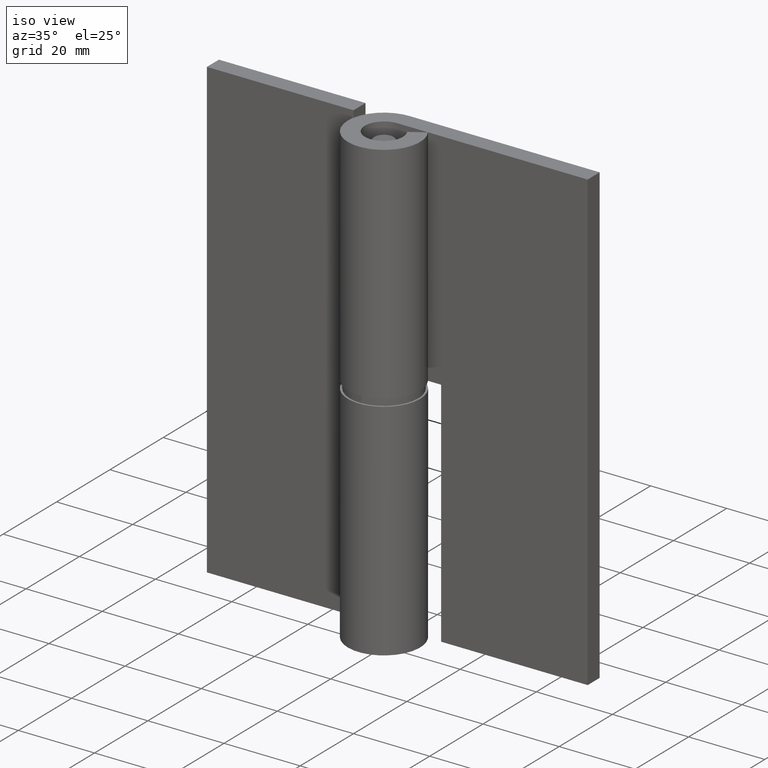
[diagram: clean part render]
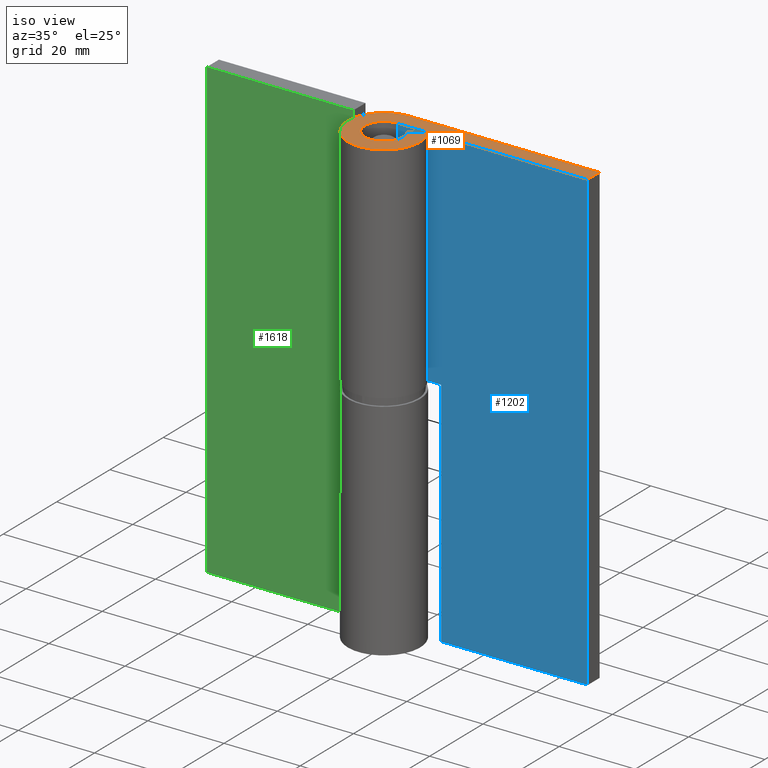
[diagram: same view with three faces highlighted in distinct colors, each labeled with its STEP entity id]
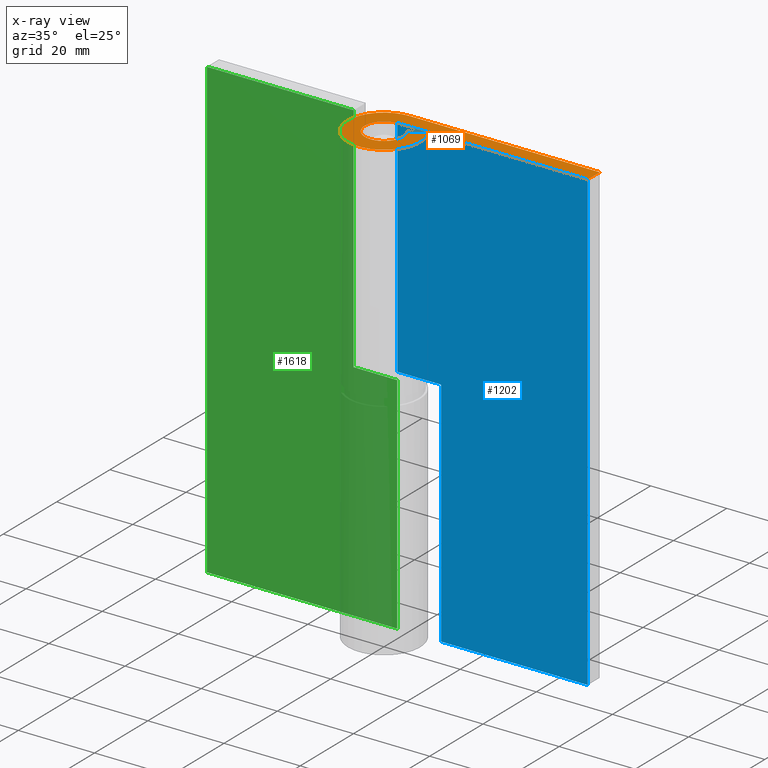
[diagram: x-ray of the same camera — body ghosted, the three highlighted faces saturated]
A machine part, iso view with three faces highlighted in distinct colors.
The next image is the same camera in x-ray (body ghosted, the three faces saturated) — at least one of them is partly hidden behind the body in this view.
Their STEP definitions:

[orange] entity #1069 — the highlighted face is a freeform B-spline surface patch.
#992=CARTESIAN_POINT('',(-12.471756635029839,-10.447973575599120,120.000015000000000));
#993=CARTESIAN_POINT('',(52.972013718958777,-10.447973575599120,120.000015000000000));
#994=CARTESIAN_POINT('',(-12.471756635029839,10.448999265035310,120.000015000000000));
#995=CARTESIAN_POINT('',(52.972013718958777,10.448999265035310,120.000015000000000));
#996=B_SPLINE_SURFACE_WITH_KNOTS('',1,1,((#992,#994),(#993,#995)),.UNSPECIFIED.,.F.,.F.,.U.,(2,2),(2,2),(0.0,65.443770353988612),(0.0,20.896972840634430),.UNSPECIFIED.);
#997=CARTESIAN_POINT('',(4.267622743181081,2.605263157894730,120.000015000000000));
#998=VERTEX_POINT('',#997);
#999=CARTESIAN_POINT('',(0.0,5.0,120.000015000000000));
#1000=VERTEX_POINT('',#999);
#1001=CARTESIAN_POINT('',(4.267622743181078,2.605263157894728,120.000015000000000));
#1002=CARTESIAN_POINT('',(6.279409924410268,-0.690199990631001,120.000015000000000));
#1003=CARTESIAN_POINT('',(3.599859763297245,-3.470015804660478,120.000015000000000));
#1004=CARTESIAN_POINT('',(0.920309602184222,-6.249831618689957,120.000015000000000));
#1005=CARTESIAN_POINT('',(-2.446802424647964,-4.360407996361905,120.000015000000000));
#1006=CARTESIAN_POINT('',(-5.813914451480154,-2.470984374033851,120.000015000000000));
#1007=CARTESIAN_POINT('',(-4.837460076414559,1.264507812983077,120.000015000000000));
#1008=CARTESIAN_POINT('',(-3.861005701348966,4.999999999999999,120.000015000000000));
#1009=CARTESIAN_POINT('',(0.0,5.0,120.000015000000000));
#1017=(BOUNDED_CURVE()B_SPLINE_CURVE(2,(#1001,#1002,#1003,#1004,#1005,#1006,#1007,#1008,#1009),.UNSPECIFIED.,.F.,.U.)B_SPLINE_CURVE_WITH_KNOTS((3,2,2,2,3),(0.0,0.250000000000000,0.500000000000000,0.750000000000000,1.0),.UNSPECIFIED.)CURVE()GEOMETRIC_REPRESENTATION_ITEM()RATIONAL_B_SPLINE_CURVE((1.0,0.791486437848627,1.0,0.791486437848627,1.0,0.791486437848627,1.0,0.791486437848627,1.0))REPRESENTATION_ITEM(''));
#1018=EDGE_CURVE('',#998,#1000,#1017,.T.);
#1019=ORIENTED_EDGE('',*,*,#1018,.T.);
#1020=CARTESIAN_POINT('',(50.0,5.0,120.000015000000000));
#1021=VERTEX_POINT('',#1020);
#1022=CARTESIAN_POINT('',(0.0,5.0,120.000015000000000));
#1023=CARTESIAN_POINT('',(50.0,5.0,120.000015000000000));
#1024=QUASI_UNIFORM_CURVE('',1,(#1022,#1023),.UNSPECIFIED.,.F.,.U.);
#1025=EDGE_CURVE('',#1000,#1021,#1024,.T.);
#1026=ORIENTED_EDGE('',*,*,#1025,.T.);
#1027=CARTESIAN_POINT('',(50.0,9.500000000000000,120.000015000000000));
#1028=VERTEX_POINT('',#1027);
#1029=CARTESIAN_POINT('',(50.0,5.0,120.000015000000000));
#1030=CARTESIAN_POINT('',(50.0,9.500000000000000,120.000015000000000));
#1031=QUASI_UNIFORM_CURVE('',1,(#1029,#1030),.UNSPECIFIED.,.F.,.U.);
#1032=EDGE_CURVE('',#1021,#1028,#1031,.T.);
#1033=ORIENTED_EDGE('',*,*,#1032,.T.);
#1034=CARTESIAN_POINT('',(0.0,9.500000000000000,120.000015000000000));
#1035=VERTEX_POINT('',#1034);
#1036=CARTESIAN_POINT('',(50.0,9.500000000000000,120.000015000000000));
#1037=CARTESIAN_POINT('',(0.0,9.500000000000000,120.000015000000000));
#1038=QUASI_UNIFORM_CURVE('',1,(#1036,#1037),.UNSPECIFIED.,.F.,.U.);
#1039=EDGE_CURVE('',#1028,#1035,#1038,.T.);
#1040=ORIENTED_EDGE('',*,*,#1039,.T.);
#1041=CARTESIAN_POINT('',(8.108483212044041,4.950000000000000,120.000015000000000));
#1042=VERTEX_POINT('',#1041);
#1043=CARTESIAN_POINT('',(8.108483212044039,4.949999999999998,120.000015000000000));
#1044=CARTESIAN_POINT('',(11.930878856379515,-1.311379982198886,120.000014999999990));
#1045=CARTESIAN_POINT('',(6.839733550264771,-6.593030028854902,120.000015000000000));
#1046=CARTESIAN_POINT('',(1.748588244150024,-11.874680075510922,120.000014999999990));
#1047=CARTESIAN_POINT('',(-4.648924606831132,-8.284775193087620,120.000015000000000));
#1048=CARTESIAN_POINT('',(-11.046437457812292,-4.694870310664316,120.000014999999990));
#1049=CARTESIAN_POINT('',(-9.191174145187663,2.402564844667847,120.000015000000000));
#1050=CARTESIAN_POINT('',(-7.335910832563033,9.500000000000002,120.000014999999990));
#1051=CARTESIAN_POINT('',(0.0,9.500000000000000,120.000015000000000));
#1059=(BOUNDED_CURVE()B_SPLINE_CURVE(2,(#1043,#1044,#1045,#1046,#1047,#1048,#1049,#1050,#1051),.UNSPECIFIED.,.F.,.U.)B_SPLINE_CURVE_WITH_KNOTS((3,2,2,2,3),(0.0,0.250000000000000,0.500000000000000,0.750000000000000,1.0),.UNSPECIFIED.)CURVE()GEOMETRIC_REPRESENTATION_ITEM()RATIONAL_B_SPLINE_CURVE((1.0,0.791486437848626,1.0,0.791486437848626,1.0,0.791486437848626,1.0,0.791486437848626,1.0))REPRESENTATION_ITEM(''));
#1060=EDGE_CURVE('',#1042,#1035,#1059,.T.);
#1061=ORIENTED_EDGE('',*,*,#1060,.F.);
#1062=CARTESIAN_POINT('',(8.108483212044041,4.950000000000000,120.000015000000000));
#1063=CARTESIAN_POINT('',(4.267622743181081,2.605263157894730,120.000015000000000));
#1064=QUASI_UNIFORM_CURVE('',1,(#1062,#1063),.UNSPECIFIED.,.F.,.U.);
#1065=EDGE_CURVE('',#1042,#998,#1064,.T.);
#1066=ORIENTED_EDGE('',*,*,#1065,.T.);
#1067=EDGE_LOOP('',(#1019,#1026,#1033,#1040,#1061,#1066));
#1068=FACE_OUTER_BOUND('',#1067,.T.);
#1069=ADVANCED_FACE('',(#1068),#996,.T.);

[blue] entity #1202 — the highlighted face is a freeform B-spline surface patch.
#893=CARTESIAN_POINT('',(11.500000000000000,5.0,61.0));
#894=VERTEX_POINT('',#893);
#907=CARTESIAN_POINT('',(11.500000000000000,5.0,0.0));
#908=VERTEX_POINT('',#907);
#914=CARTESIAN_POINT('',(11.500000000000000,5.0,61.0));
#915=CARTESIAN_POINT('',(11.500000000000000,5.0,0.0));
#916=QUASI_UNIFORM_CURVE('',1,(#914,#915),.UNSPECIFIED.,.F.,.U.);
#917=EDGE_CURVE('',#894,#908,#916,.T.);
#929=CARTESIAN_POINT('',(0.0,5.0,61.0));
#930=VERTEX_POINT('',#929);
#984=CARTESIAN_POINT('',(0.0,5.0,61.0));
#985=CARTESIAN_POINT('',(11.500000000000000,5.0,61.0));
#986=QUASI_UNIFORM_CURVE('',1,(#984,#985),.UNSPECIFIED.,.F.,.U.);
#987=EDGE_CURVE('',#930,#894,#986,.T.);
#999=CARTESIAN_POINT('',(0.0,5.0,120.000015000000000));
#1000=VERTEX_POINT('',#999);
#1020=CARTESIAN_POINT('',(50.0,5.0,120.000015000000000));
#1021=VERTEX_POINT('',#1020);
#1022=CARTESIAN_POINT('',(0.0,5.0,120.000015000000000));
#1023=CARTESIAN_POINT('',(50.0,5.0,120.000015000000000));
#1024=QUASI_UNIFORM_CURVE('',1,(#1022,#1023),.UNSPECIFIED.,.F.,.U.);
#1025=EDGE_CURVE('',#1000,#1021,#1024,.T.);
#1076=CARTESIAN_POINT('',(50.0,5.0,0.0));
#1077=VERTEX_POINT('',#1076);
#1078=CARTESIAN_POINT('',(50.0,5.0,0.0));
#1079=CARTESIAN_POINT('',(50.0,5.0,120.000015000000000));
#1080=QUASI_UNIFORM_CURVE('',1,(#1078,#1079),.UNSPECIFIED.,.F.,.U.);
#1081=EDGE_CURVE('',#1077,#1021,#1080,.T.);
#1103=CARTESIAN_POINT('',(11.500000000000000,5.0,0.0));
#1104=CARTESIAN_POINT('',(50.0,5.0,0.0));
#1105=QUASI_UNIFORM_CURVE('',1,(#1103,#1104),.UNSPECIFIED.,.F.,.U.);
#1106=EDGE_CURVE('',#908,#1077,#1105,.T.);
#1185=CARTESIAN_POINT('',(-2.497499903090299,5.0,125.994016643140990));
#1186=CARTESIAN_POINT('',(-2.497499903090299,5.0,-5.994003788908462));
#1187=CARTESIAN_POINT('',(52.497501244194808,5.0,125.994016643140990));
#1188=CARTESIAN_POINT('',(52.497501244194808,5.0,-5.994003788908462));
#1189=B_SPLINE_SURFACE_WITH_KNOTS('',1,1,((#1185,#1187),(#1186,#1188)),.UNSPECIFIED.,.F.,.F.,.U.,(2,2),(2,2),(0.0,131.988020432049500),(0.0,54.995001147285109),.UNSPECIFIED.);
#1190=CARTESIAN_POINT('',(0.0,5.0,61.0));
#1191=CARTESIAN_POINT('',(0.0,5.0,120.000015000000000));
#1192=QUASI_UNIFORM_CURVE('',1,(#1190,#1191),.UNSPECIFIED.,.F.,.U.);
#1193=EDGE_CURVE('',#930,#1000,#1192,.T.);
#1194=ORIENTED_EDGE('',*,*,#1193,.F.);
#1195=ORIENTED_EDGE('',*,*,#987,.T.);
#1196=ORIENTED_EDGE('',*,*,#917,.T.);
#1197=ORIENTED_EDGE('',*,*,#1106,.T.);
#1198=ORIENTED_EDGE('',*,*,#1081,.T.);
#1199=ORIENTED_EDGE('',*,*,#1025,.F.);
#1200=EDGE_LOOP('',(#1194,#1195,#1196,#1197,#1198,#1199));
#1201=FACE_OUTER_BOUND('',#1200,.T.);
#1202=ADVANCED_FACE('',(#1201),#1189,.T.);

[green] entity #1618 — the highlighted face is a freeform B-spline surface patch.
#1280=CARTESIAN_POINT('',(-11.500000000000000,5.0,59.0));
#1281=VERTEX_POINT('',#1280);
#1294=CARTESIAN_POINT('',(-11.500000000000000,5.0,120.000015000000000));
#1295=VERTEX_POINT('',#1294);
#1301=CARTESIAN_POINT('',(-11.500000000000000,5.0,59.0));
#1302=CARTESIAN_POINT('',(-11.500000000000000,5.0,120.000015000000000));
#1303=QUASI_UNIFORM_CURVE('',1,(#1301,#1302),.UNSPECIFIED.,.F.,.U.);
#1304=EDGE_CURVE('',#1281,#1295,#1303,.T.);
#1316=CARTESIAN_POINT('',(-9.184548E-016,5.0,59.0));
#1317=VERTEX_POINT('',#1316);
#1371=CARTESIAN_POINT('',(-9.184548E-016,5.0,59.0));
#1372=CARTESIAN_POINT('',(-11.500000000000000,5.0,59.0));
#1373=QUASI_UNIFORM_CURVE('',1,(#1371,#1372),.UNSPECIFIED.,.F.,.U.);
#1374=EDGE_CURVE('',#1317,#1281,#1373,.T.);
#1384=CARTESIAN_POINT('',(-49.999991999999899,5.0,0.0));
#1385=VERTEX_POINT('',#1384);
#1386=CARTESIAN_POINT('',(-9.184548E-016,5.0,0.0));
#1387=VERTEX_POINT('',#1386);
#1388=CARTESIAN_POINT('',(-49.999991999999899,5.0,0.0));
#1389=CARTESIAN_POINT('',(-9.184548E-016,5.0,0.0));
#1390=QUASI_UNIFORM_CURVE('',1,(#1388,#1389),.UNSPECIFIED.,.F.,.U.);
#1391=EDGE_CURVE('',#1385,#1387,#1390,.T.);
#1464=CARTESIAN_POINT('',(-49.999991999999899,5.0,120.000015000000000));
#1465=VERTEX_POINT('',#1464);
#1477=CARTESIAN_POINT('',(-49.999991999999899,5.0,0.0));
#1478=CARTESIAN_POINT('',(-49.999991999999899,5.0,120.000015000000000));
#1479=QUASI_UNIFORM_CURVE('',1,(#1477,#1478),.UNSPECIFIED.,.F.,.U.);
#1480=EDGE_CURVE('',#1385,#1465,#1479,.T.);
#1497=CARTESIAN_POINT('',(-49.999991999999899,5.0,120.000015000000000));
#1498=CARTESIAN_POINT('',(-11.500000000000000,5.0,120.000015000000000));
#1499=QUASI_UNIFORM_CURVE('',1,(#1497,#1498),.UNSPECIFIED.,.F.,.U.);
#1500=EDGE_CURVE('',#1465,#1295,#1499,.T.);
#1596=CARTESIAN_POINT('',(-9.184548E-016,5.0,0.0));
#1597=CARTESIAN_POINT('',(-9.184548E-016,5.0,59.0));
#1598=QUASI_UNIFORM_CURVE('',1,(#1596,#1597),.UNSPECIFIED.,.F.,.U.);
#1599=EDGE_CURVE('',#1387,#1317,#1598,.T.);
#1605=CARTESIAN_POINT('',(-52.497491972854370,5.0,125.994016643140990));
#1606=CARTESIAN_POINT('',(-52.497491972854370,5.0,-5.994003788908463));
#1607=CARTESIAN_POINT('',(2.497500866923996,5.0,125.994016643140990));
#1608=CARTESIAN_POINT('',(2.497500866923996,5.0,-5.994003788908462));
#1609=B_SPLINE_SURFACE_WITH_KNOTS('',1,1,((#1605,#1607),(#1606,#1608)),.UNSPECIFIED.,.F.,.F.,.U.,(2,2),(2,2),(0.0,131.988020432049500),(0.0,54.994992839778362),.UNSPECIFIED.);
#1610=ORIENTED_EDGE('',*,*,#1374,.T.);
#1611=ORIENTED_EDGE('',*,*,#1304,.T.);
#1612=ORIENTED_EDGE('',*,*,#1500,.F.);
#1613=ORIENTED_EDGE('',*,*,#1480,.F.);
#1614=ORIENTED_EDGE('',*,*,#1391,.T.);
#1615=ORIENTED_EDGE('',*,*,#1599,.T.);
#1616=EDGE_LOOP('',(#1610,#1611,#1612,#1613,#1614,#1615));
#1617=FACE_OUTER_BOUND('',#1616,.T.);
#1618=ADVANCED_FACE('',(#1617),#1609,.T.);